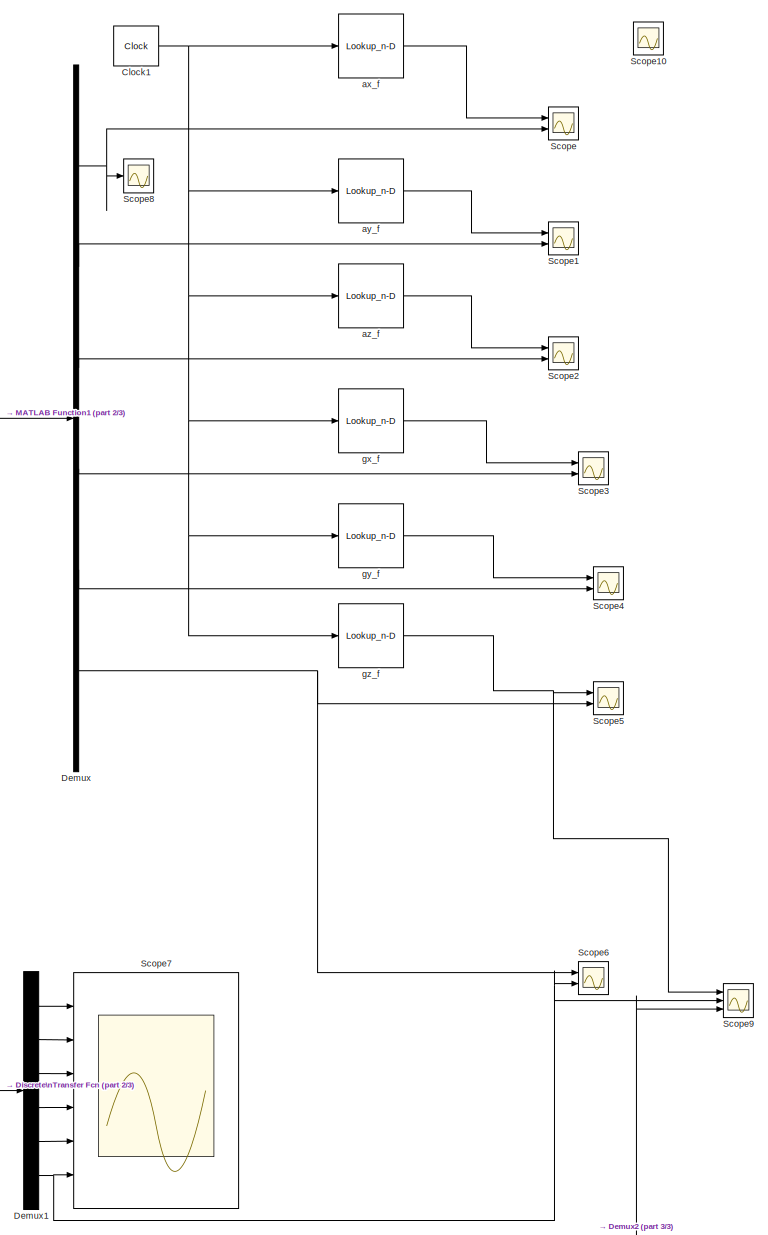
[diagram: root canvas - part 1/3, right side, full height]
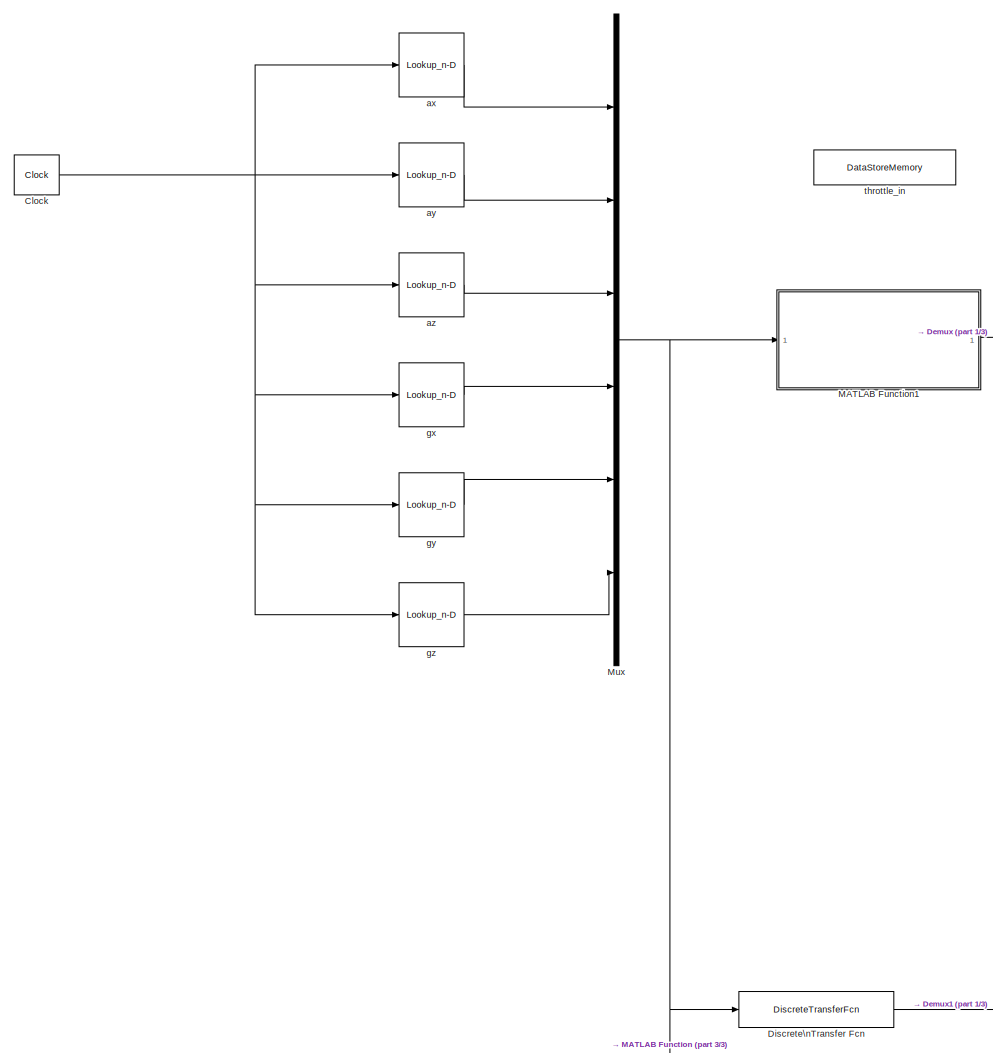
[diagram: root canvas - part 2/3, middle left region]
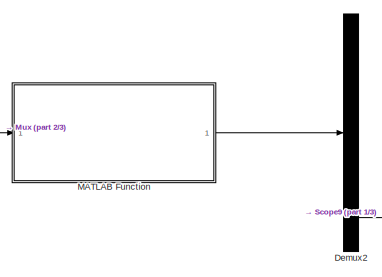
[diagram: root canvas - part 3/3, bottom center region]
MODEL lvbo_test
KIND model
BLOCK [Clock] Clock
  Decimation = 1
  SID = 22
BLOCK [Clock] Clock1
  Decimation = 1
  SID = 46
BLOCK [Demux] Demux
  DisplayOption = bar
  Outputs = 6
  Ports = [1, 6]
  SID = 25
BLOCK [Demux] Demux1
  DisplayOption = bar
  Outputs = 6
  Ports = [1, 6]
  SID = 62
BLOCK [Demux] Demux2
  DisplayOption = bar
  Outputs = 6
  Ports = [1, 6]
  SID = 70
BLOCK [DiscreteTransferFcn] Discrete\nTransfer Fcn
  Denominator = ftz.den{1:end}
  InputPortMap = u0
  Numerator = ftz.num{1:end}
  Ports = [1, 1]
  SID = 59
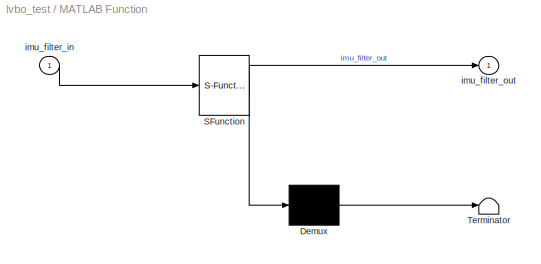
BLOCK [SubSystem] MATLAB Function
  ErrorFcn = Stateflow.Translate.translate
  PermitHierarchicalResolution = ExplicitOnly
  Ports = [1, 1]
  RequestExecContextInheritance = off
  SFBlockType = MATLAB Function
  SID = 64
  TreatAsAtomicUnit = on
BLOCK [Demux] MATLAB Function/ Demux 
  Outputs = 1
  Ports = [1, 1]
  SID = 64::23
BLOCK [S-Function] MATLAB Function/ SFunction 
  EnableBusSupport = on
  FunctionName = sf_sfun
  PortCounts = [1 2]
  Ports = [1, 2]
  SFcnIsStateOwnerBlock = off
  SFunctionDeploymentMode = off
  SID = 64::22
  Tag = Stateflow S-Function 2
BLOCK [Terminator] MATLAB Function/ Terminator 
  SID = 64::24
BLOCK [Inport] MATLAB Function/imu_filter_in
  IconDisplay = Port number
  SID = 64::1
BLOCK [Outport] MATLAB Function/imu_filter_out
  IconDisplay = Port number
  SID = 64::5
  VectorParamsAs1DForOutWhenUnconnected = off
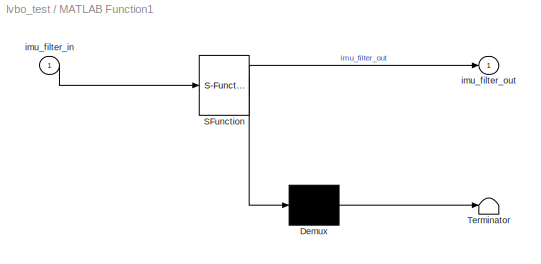
BLOCK [SubSystem] MATLAB Function1
  ErrorFcn = Stateflow.Translate.translate
  PermitHierarchicalResolution = ExplicitOnly
  Ports = [1, 1]
  RequestExecContextInheritance = off
  SFBlockType = MATLAB Function
  SID = 68
  TreatAsAtomicUnit = on
BLOCK [Demux] MATLAB Function1/ Demux 
  Outputs = 1
  Ports = [1, 1]
  SID = 68::23
BLOCK [S-Function] MATLAB Function1/ SFunction 
  EnableBusSupport = on
  FunctionName = sf_sfun
  PortCounts = [1 2]
  Ports = [1, 2]
  SFcnIsStateOwnerBlock = off
  SFunctionDeploymentMode = off
  SID = 68::22
  Tag = Stateflow S-Function 1
BLOCK [Terminator] MATLAB Function1/ Terminator 
  SID = 68::24
BLOCK [Inport] MATLAB Function1/imu_filter_in
  IconDisplay = Port number
  SID = 68::1
BLOCK [Outport] MATLAB Function1/imu_filter_out
  IconDisplay = Port number
  SID = 68::5
  VectorParamsAs1DForOutWhenUnconnected = off
BLOCK [Mux] Mux
  DisplayOption = bar
  Inputs = 6
  Ports = [6, 1]
  SID = 23
BLOCK [Scope] Scope
  Floating = off
  NumInputPorts = 2
  Ports = [2]
  SID = 47
  ScopeSpecificationString = Simulink.scopes.TimeScopeBlockCfg('CurrentConfiguration', extmgr.ConfigurationSet(extmgr.Configuration('Core','General UI',true),extmgr.Configuration('Core','Source UI',true),extmgr.Configuration('Sources','WiredSimulink',true),extmgr.Configuration('Visuals','Time Domain',true,'SerializedDisplays',{struct('MinYLimReal','-11.39809','MaxYLimReal','13.81167','YLabelReal','','MinYLimMag','0.00000','Ma...<+1438ch>
BLOCK [Scope] Scope1
  Floating = off
  NumInputPorts = 2
  Ports = [2]
  SID = 48
  ScopeSpecificationString = Simulink.scopes.TimeScopeBlockCfg('CurrentConfiguration', extmgr.ConfigurationSet(extmgr.Configuration('Core','General UI',true),extmgr.Configuration('Core','Source UI',true),extmgr.Configuration('Sources','WiredSimulink',true,'DataLoggingVariableName','ScopeData1'),extmgr.Configuration('Visuals','Time Domain',true,'SerializedDisplays',{struct('MinYLimReal','-9.54015','MaxYLimReal','14.6492','YLab...<+1471ch>
BLOCK [Scope] Scope10
  Floating = off
  NumInputPorts = 2
  Ports = [2]
  SID = 71
  ScopeSpecificationString = Simulink.scopes.TimeScopeBlockCfg('CurrentConfiguration', extmgr.ConfigurationSet(extmgr.Configuration('Core','General UI',true),extmgr.Configuration('Core','Source UI',true),extmgr.Configuration('Sources','WiredSimulink',true,'DataLoggingVariableName','ScopeData1'),extmgr.Configuration('Visuals','Time Domain',true,'SerializedDisplays',{struct('MinYLimReal','-11.39809','MaxYLimReal','13.81167','YL...<+1477ch>
BLOCK [Scope] Scope2
  Floating = off
  NumInputPorts = 2
  Ports = [2]
  SID = 53
  ScopeSpecificationString = Simulink.scopes.TimeScopeBlockCfg('CurrentConfiguration', extmgr.ConfigurationSet(extmgr.Configuration('Core','General UI',true),extmgr.Configuration('Core','Source UI',true),extmgr.Configuration('Sources','WiredSimulink',true,'DataLoggingVariableName','ScopeData2'),extmgr.Configuration('Visuals','Time Domain',true,'SerializedDisplays',{struct('MinYLimReal','-37.96177','MaxYLimReal','19.8897','YLa...<+1475ch>
BLOCK [Scope] Scope3
  Floating = off
  NumInputPorts = 2
  Ports = [2]
  SID = 54
  ScopeSpecificationString = Simulink.scopes.TimeScopeBlockCfg('CurrentConfiguration', extmgr.ConfigurationSet(extmgr.Configuration('Core','General UI',true),extmgr.Configuration('Core','Source UI',true),extmgr.Configuration('Sources','WiredSimulink',true,'DataLoggingVariableName','ScopeData3'),extmgr.Configuration('Visuals','Time Domain',true,'SerializedDisplays',{struct('MinYLimReal','-111.2254','MaxYLimReal','161.00272','Y...<+1483ch>
BLOCK [Scope] Scope4
  Floating = off
  NumInputPorts = 2
  Ports = [2]
  SID = 55
  ScopeSpecificationString = Simulink.scopes.TimeScopeBlockCfg('CurrentConfiguration', extmgr.ConfigurationSet(extmgr.Configuration('Core','General UI',true),extmgr.Configuration('Core','Source UI',true),extmgr.Configuration('Sources','WiredSimulink',true,'DataLoggingVariableName','ScopeData4'),extmgr.Configuration('Visuals','Time Domain',true,'SerializedDisplays',{struct('MinYLimReal','-40.21264','MaxYLimReal','38.61785','YL...<+1452ch>
BLOCK [Scope] Scope5
  Floating = off
  NumInputPorts = 2
  Ports = [2]
  SID = 56
  ScopeSpecificationString = Simulink.scopes.TimeScopeBlockCfg('CurrentConfiguration', extmgr.ConfigurationSet(extmgr.Configuration('Core','General UI',true),extmgr.Configuration('Core','Source UI',true),extmgr.Configuration('Sources','WiredSimulink',true,'DataLoggingVariableName','ScopeData5'),extmgr.Configuration('Visuals','Time Domain',true,'SerializedDisplays',{struct('MinYLimReal','-27.69997','MaxYLimReal','25.31323','YL...<+1477ch>
BLOCK [Scope] Scope6
  Floating = off
  NumInputPorts = 2
  Ports = [2]
  SID = 58
  ScopeSpecificationString = Simulink.scopes.TimeScopeBlockCfg('CurrentConfiguration', extmgr.ConfigurationSet(extmgr.Configuration('Core','General UI',true),extmgr.Configuration('Core','Source UI',true),extmgr.Configuration('Sources','WiredSimulink',true,'DataLoggingVariableName','ScopeData1'),extmgr.Configuration('Visuals','Time Domain',true,'SerializedDisplays',{struct('MinYLimReal','-0.2068','MaxYLimReal','0.25679','YLabe...<+1473ch>
BLOCK [Scope] Scope7
  Floating = off
  NumInputPorts = 6
  Ports = [6]
  SID = 61
  ScopeSpecificationString = Simulink.scopes.TimeScopeBlockCfg('CurrentConfiguration', extmgr.ConfigurationSet(extmgr.Configuration('Core','General UI',true),extmgr.Configuration('Core','Source UI',true),extmgr.Configuration('Sources','WiredSimulink',true,'DataLoggingVariableName','ScopeData2'),extmgr.Configuration('Visuals','Time Domain',true,'SerializedDisplays',{struct('MinYLimReal','-3.93844','MaxYLimReal','3.79829','YLab...<+4886ch>
BLOCK [Scope] Scope8
  Floating = off
  NumInputPorts = 1
  Ports = [1]
  SID = 66
  ScopeSpecificationString = Simulink.scopes.TimeScopeBlockCfg('CurrentConfiguration', extmgr.ConfigurationSet(extmgr.Configuration('Core','General UI',true),extmgr.Configuration('Core','Source UI',true),extmgr.Configuration('Sources','WiredSimulink',true,'DataLoggingVariableName','ScopeData1'),extmgr.Configuration('Visuals','Time Domain',true,'SerializedDisplays',{struct('MinYLimReal','-1.00000','MaxYLimReal','1.00000','YLab...<+1464ch>
BLOCK [Scope] Scope9
  Floating = off
  NumInputPorts = 3
  Ports = [3]
  SID = 67
  ScopeSpecificationString = Simulink.scopes.TimeScopeBlockCfg('CurrentConfiguration', extmgr.ConfigurationSet(extmgr.Configuration('Core','General UI',true),extmgr.Configuration('Core','Source UI',true),extmgr.Configuration('Sources','WiredSimulink',true,'DataLoggingVariableName','ScopeData1'),extmgr.Configuration('Visuals','Time Domain',true,'SerializedDisplays',{struct('MinYLimReal','-0.92939','MaxYLimReal','0.90077','YLab...<+1483ch>
BLOCK [Lookup_n-D] ax
  BreakpointsForDimension1 = time_imu
  InternalRulePriority = Speed
  NumberOfTableDimensions = 1
  Ports = [1, 1]
  RndMeth = Simplest
  SID = 16
  Table = ax
BLOCK [Lookup_n-D] ax_f
  BreakpointsForDimension1 = time_algo
  InternalRulePriority = Speed
  NumberOfTableDimensions = 1
  Ports = [1, 1]
  RndMeth = Simplest
  SID = 38
  Table = ax_f
BLOCK [Lookup_n-D] ay
  BreakpointsForDimension1 = time_imu
  InternalRulePriority = Speed
  NumberOfTableDimensions = 1
  Ports = [1, 1]
  RndMeth = Simplest
  SID = 17
  Table = ay
BLOCK [Lookup_n-D] ay_f
  BreakpointsForDimension1 = time_algo
  InternalRulePriority = Speed
  NumberOfTableDimensions = 1
  Ports = [1, 1]
  RndMeth = Simplest
  SID = 39
  Table = ay_f
BLOCK [Lookup_n-D] az
  BreakpointsForDimension1 = time_imu
  InternalRulePriority = Speed
  NumberOfTableDimensions = 1
  Ports = [1, 1]
  RndMeth = Simplest
  SID = 18
  Table = az
BLOCK [Lookup_n-D] az_f
  BreakpointsForDimension1 = time_algo
  InternalRulePriority = Speed
  NumberOfTableDimensions = 1
  Ports = [1, 1]
  RndMeth = Simplest
  SID = 41
  Table = az_f
BLOCK [Lookup_n-D] gx
  BreakpointsForDimension1 = time_imu
  InternalRulePriority = Speed
  NumberOfTableDimensions = 1
  Ports = [1, 1]
  RndMeth = Simplest
  SID = 19
  Table = gx
BLOCK [Lookup_n-D] gx_f
  BreakpointsForDimension1 = time_algo
  InternalRulePriority = Speed
  NumberOfTableDimensions = 1
  Ports = [1, 1]
  RndMeth = Simplest
  SID = 43
  Table = gx_f
BLOCK [Lookup_n-D] gy
  BreakpointsForDimension1 = time_imu
  InternalRulePriority = Speed
  NumberOfTableDimensions = 1
  Ports = [1, 1]
  RndMeth = Simplest
  SID = 20
  Table = gy
BLOCK [Lookup_n-D] gy_f
  BreakpointsForDimension1 = time_algo
  InternalRulePriority = Speed
  NumberOfTableDimensions = 1
  Ports = [1, 1]
  RndMeth = Simplest
  SID = 44
  Table = gy_f
BLOCK [Lookup_n-D] gz
  BreakpointsForDimension1 = time_imu
  InternalRulePriority = Speed
  NumberOfTableDimensions = 1
  Ports = [1, 1]
  RndMeth = Simplest
  SID = 21
  Table = gz
BLOCK [Lookup_n-D] gz_f
  BreakpointsForDimension1 = time_algo
  InternalRulePriority = Speed
  NumberOfTableDimensions = 1
  Ports = [1, 1]
  RndMeth = Simplest
  SID = 45
  Table = gz_f
BLOCK [DataStoreMemory] throttle_in
  DataStoreName = imu_filt
  InitialValue = imu_filt
  OutDataTypeStr = double
  ReadBeforeWriteMsg = warning
  SID = 65
  ShowAdditionalParam = off
  SignalType = real
  VectorParams1D = off
  WriteAfterReadMsg = warning
  WriteAfterWriteMsg = warning
NET Clock1:1 -> ax_f:1, ay_f:1, az_f:1, gx_f:1, gy_f:1, gz_f:1
NET Clock:1 -> ax:1, ay:1, az:1, gx:1, gy:1, gz:1
LINE Demux1:1 -> Scope7:1
LINE Demux1:2 -> Scope7:2
LINE Demux1:3 -> Scope7:3
LINE Demux1:4 -> Scope7:4
LINE Demux1:5 -> Scope7:5
NET Demux1:6 -> Scope6:2, Scope7:6, Scope9:2
LINE Demux2:6 -> Scope9:3
NET Demux:1 -> Scope8:1, Scope:2
LINE Demux:2 -> Scope1:2
LINE Demux:3 -> Scope2:2
LINE Demux:4 -> Scope3:2
LINE Demux:5 -> Scope4:2
NET Demux:6 -> Scope5:2, Scope6:1
LINE Discrete\nTransfer Fcn:1 -> Demux1:1
LINE MATLAB Function/ Demux :1 -> MATLAB Function/ Terminator :1
LINE MATLAB Function/ SFunction :1 -> MATLAB Function/ Demux :1
LINE MATLAB Function/ SFunction :2 -> MATLAB Function/imu_filter_out:1
LINE MATLAB Function/imu_filter_in:1 -> MATLAB Function/ SFunction :1
LINE MATLAB Function1/ Demux :1 -> MATLAB Function1/ Terminator :1
LINE MATLAB Function1/ SFunction :1 -> MATLAB Function1/ Demux :1
LINE MATLAB Function1/ SFunction :2 -> MATLAB Function1/imu_filter_out:1
LINE MATLAB Function1/imu_filter_in:1 -> MATLAB Function1/ SFunction :1
LINE MATLAB Function1:1 -> Demux:1
LINE MATLAB Function:1 -> Demux2:1
NET Mux:1 -> Discrete\nTransfer Fcn:1, MATLAB Function1:1, MATLAB Function:1
LINE ax:1 -> Mux:1
LINE ax_f:1 -> Scope:1
LINE ay:1 -> Mux:2
LINE ay_f:1 -> Scope1:1
LINE az:1 -> Mux:3
LINE az_f:1 -> Scope2:1
LINE gx:1 -> Mux:4
LINE gx_f:1 -> Scope3:1
LINE gy:1 -> Mux:5
LINE gy_f:1 -> Scope4:1
LINE gz:1 -> Mux:6
NET gz_f:1 -> Scope5:1, Scope9:1
note: NET lines group one-source signal fan-out (src -> all destinations, sorted); 1:1 wires keep LINE
CHART MATLAB Function1 states=1 transitions=1
  STATE_LABEL 'eML_blk_kernel()'
CHART MATLAB Function states=1 transitions=1
  STATE_LABEL 'eML_blk_kernel()'
